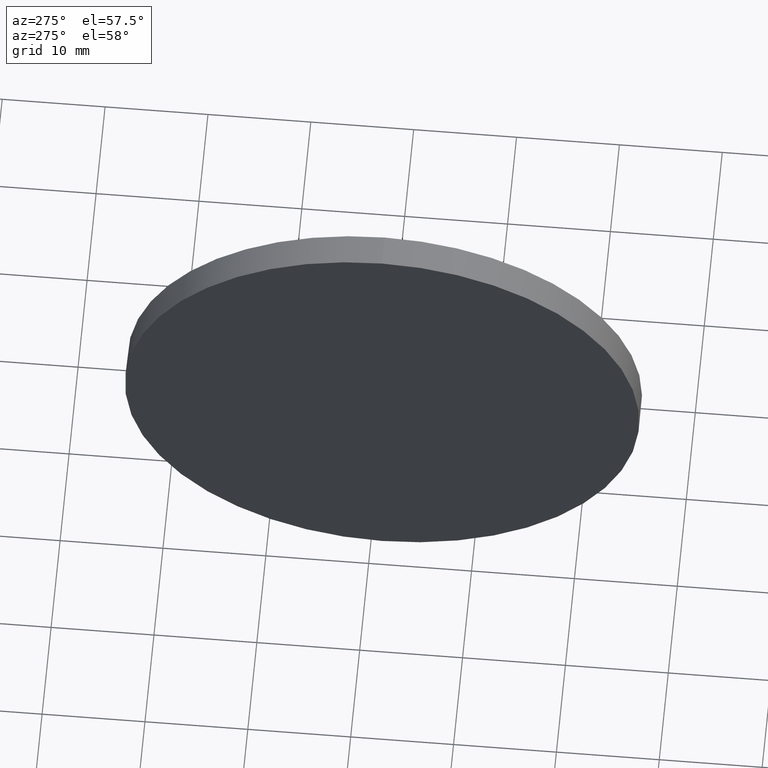
[diagram: clean part render]
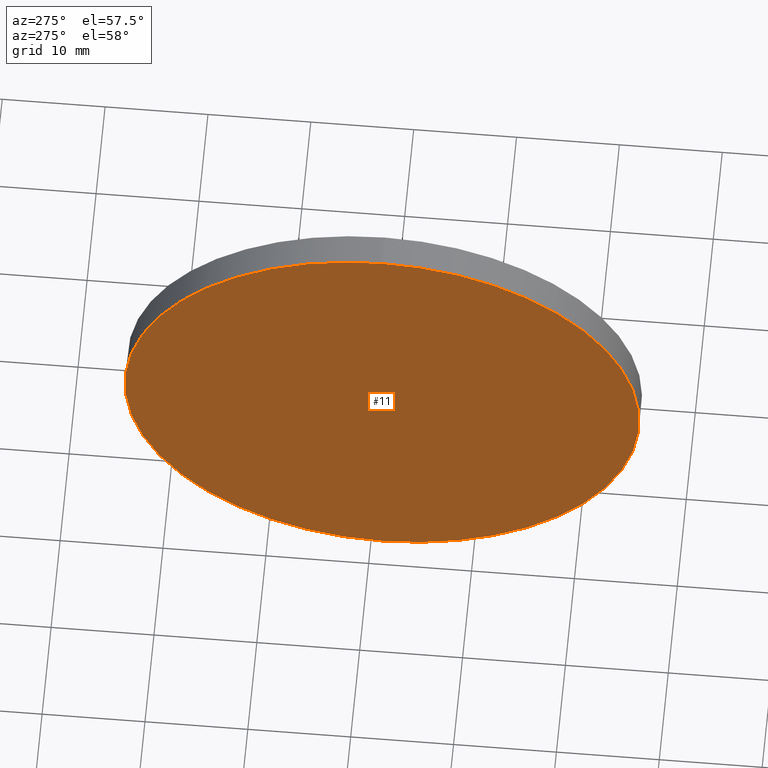
[diagram: same view with one face highlighted and labeled with its STEP entity id]
A machine part, auxiliary view. The second image highlights one B-rep face of the part: STEP entity #11.
In plain terms, the highlighted planar face has unit normal (1, 0, 0).
Its self-contained STEP definition (entity closure, byte-faithful):
#1 = DIRECTION ( 'NONE',  ( -1.000000000000000000, -0.0000000000000000000, -0.0000000000000000000 ) ) ;
#3 = EDGE_CURVE ( 'NONE', #51, #167, #170, .T. ) ;
#4 = CARTESIAN_POINT ( 'NONE',  ( 462.0046362820362400, 88.87131801322505000, 25.00000000000000700 ) ) ;
#7 = DIRECTION ( 'NONE',  ( 0.0000000000000000000, 0.0000000000000000000, -1.000000000000000000 ) ) ;
#11 = ADVANCED_FACE ( 'NONE', ( #112 ), #30, .F. ) ;
#14 = DIRECTION ( 'NONE',  ( 0.0000000000000000000, 0.0000000000000000000, 1.000000000000000000 ) ) ;
#24 = AXIS2_PLACEMENT_3D ( 'NONE', #154, #179, #7 ) ;
#30 = PLANE ( 'NONE',  #24 ) ;
#37 = ORIENTED_EDGE ( 'NONE', *, *, #3, .T. ) ;
#44 = CIRCLE ( 'NONE', #129, 25.00000000000000700 ) ;
#51 = VERTEX_POINT ( 'NONE', #151 ) ;
#75 = DIRECTION ( 'NONE',  ( 0.0000000000000000000, 0.0000000000000000000, 1.000000000000000000 ) ) ;
#83 = CARTESIAN_POINT ( 'NONE',  ( 462.0046362820362400, 88.87131801322505000, 0.0000000000000000000 ) ) ;
#85 = DIRECTION ( 'NONE',  ( -1.000000000000000000, -0.0000000000000000000, -0.0000000000000000000 ) ) ;
#98 = EDGE_LOOP ( 'NONE', ( #146, #37 ) ) ;
#112 = FACE_OUTER_BOUND ( 'NONE', #98, .T. ) ;
#129 = AXIS2_PLACEMENT_3D ( 'NONE', #173, #1, #75 ) ;
#146 = ORIENTED_EDGE ( 'NONE', *, *, #156, .T. ) ;
#151 = CARTESIAN_POINT ( 'NONE',  ( 462.0046362820362400, 88.87131801322505000, -25.00000000000000700 ) ) ;
#154 = CARTESIAN_POINT ( 'NONE',  ( 462.0046362820362400, 88.87131801322505000, 0.0000000000000000000 ) ) ;
#156 = EDGE_CURVE ( 'NONE', #167, #51, #44, .T. ) ;
#161 = AXIS2_PLACEMENT_3D ( 'NONE', #83, #85, #14 ) ;
#167 = VERTEX_POINT ( 'NONE', #4 ) ;
#170 = CIRCLE ( 'NONE', #161, 25.00000000000000700 ) ;
#173 = CARTESIAN_POINT ( 'NONE',  ( 462.0046362820362400, 88.87131801322505000, 0.0000000000000000000 ) ) ;
#179 = DIRECTION ( 'NONE',  ( 1.000000000000000000, 0.0000000000000000000, 0.0000000000000000000 ) ) ;